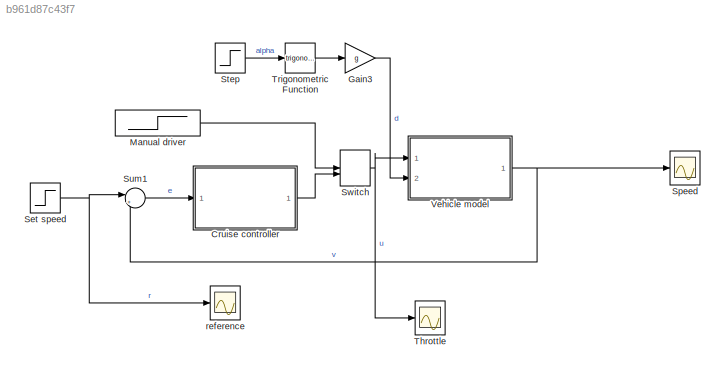
MODEL slx_b961d87c43f7
KIND model
CONFIG AbsTol = auto
CONFIG EnableMultiTasking = off
CONFIG FixedStep = auto
CONFIG MaxStep = 1e-3
CONFIG MinStep = auto
CONFIG RelTol = 1e-3
CONFIG SampleTimeConstraint = Unconstrained
CONFIG SolverName = ode45
CONFIG StartTime = 0.0
CONFIG StopTime = 100
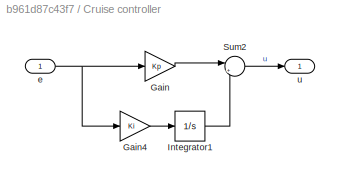
BLOCK [SubSystem] Cruise controller
  Ports = [1, 1]
  RequestExecContextInheritance = off
BLOCK [Gain] Cruise controller/Gain
  Gain = Kp
BLOCK [Gain] Cruise controller/Gain4
  Gain = Ki
BLOCK [Integrator] Cruise controller/Integrator1
  InitialCondition = a*25/b
  Ports = [1, 1]
BLOCK [Sum] Cruise controller/Sum2
  Inputs = |++
  Ports = [2, 1]
BLOCK [Inport] Cruise controller/e
BLOCK [Outport] Cruise controller/u
BLOCK [Gain] Gain3
  Gain = g
BLOCK [Step] Manual driver
  After = 30*a/b
  Before = 25*a/b
  SampleTime = 0
BLOCK [Step] Set speed
  After = 30
  Before = 25
  SampleTime = 0
BLOCK [Scope] Speed
  Floating = off
  NumInputPorts = 1
  Ports = [1]
  ScopeSpecificationString = Simulink.scopes.TimeScopeBlockCfg('CurrentConfiguration', extmgr.ConfigurationSet(extmgr.Configuration('Core','General UI',true),extmgr.Configuration('Core','Source UI',true),extmgr.Configuration('Sources','WiredSimulink',true,'DataLogging',true,'DataLoggingSaveFormat','StructureWithTime','DataLoggingDecimation','10','DataLoggingDecimateData',true,'DataLoggingVariableName','speed'),extmgr.Configur...<+1697ch>
BLOCK [Step] Step
  After = 0.1
  SampleTime = 0
  Time = 1000
BLOCK [Sum] Sum1
  Inputs = |+-
  Ports = [2, 1]
BLOCK [ManualSwitch] Switch
BLOCK [Scope] Throttle
  Floating = off
  NumInputPorts = 1
  Ports = [1]
  ScopeSpecificationString = Simulink.scopes.TimeScopeBlockCfg('CurrentConfiguration', extmgr.ConfigurationSet(extmgr.Configuration('Core','General UI',true),extmgr.Configuration('Core','Source UI',true),extmgr.Configuration('Sources','WiredSimulink',true,'DataLoggingVariableName','ScopeData1','DataLoggingSaveFormat','Array','DataLoggingDecimation','1','DataLoggingDecimateData',true),extmgr.Configuration('Visuals','Time Domai...<+1649ch>
BLOCK [Trigonometry] Trigonometric Function
  Ports = [1, 1]
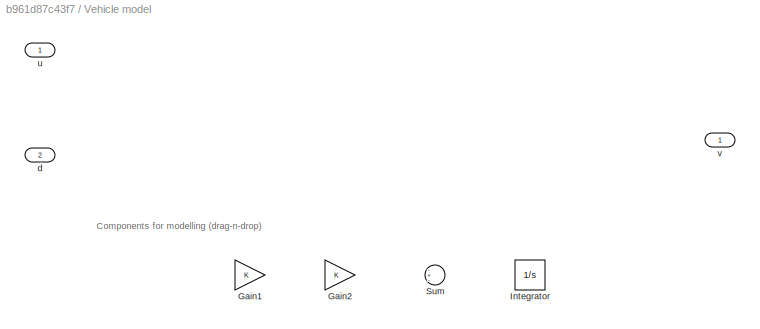
BLOCK [SubSystem] Vehicle model
  Ports = [2, 1]
  RequestExecContextInheritance = off
BLOCK [Gain] Vehicle model/Gain1
BLOCK [Gain] Vehicle model/Gain2
BLOCK [Integrator] Vehicle model/Integrator
  InitialCondition = 25
  Ports = [1, 1]
BLOCK [Sum] Vehicle model/Sum
  Inputs = -+-
  Ports = [3, 1]
BLOCK [Inport] Vehicle model/d
  Port = 2
BLOCK [Inport] Vehicle model/u
BLOCK [Outport] Vehicle model/v
BLOCK [Scope] reference
  Floating = off
  NumInputPorts = 1
  Ports = [1]
  ScopeSpecificationString = Simulink.scopes.TimeScopeBlockCfg('CurrentConfiguration', extmgr.ConfigurationSet(extmgr.Configuration('Core','General UI',true),extmgr.Configuration('Core','Source UI',true),extmgr.Configuration('Sources','WiredSimulink',true,'DataLoggingSaveFormat','Array','DataLoggingDecimation','1','DataLoggingDecimateData',true),extmgr.Configuration('Visuals','Time Domain',true,'SerializedDisplays',{struct('M...<+1604ch>
ANNOTATION Vehicle model: Components for modelling (drag-n-drop)
LINE Cruise controller/Gain4:1 -> Cruise controller/Integrator1:1
LINE Cruise controller/Gain:1 -> Cruise controller/Sum2:1
LINE Cruise controller/Integrator1:1 -> Cruise controller/Sum2:2
LINE Cruise controller/Sum2:1 -> Cruise controller/u:1
NET Cruise controller/e:1 -> Cruise controller/Gain4:1, Cruise controller/Gain:1
LINE Cruise controller:1 -> Switch:2
LINE Gain3:1 -> Vehicle model:2
LINE Manual driver:1 -> Switch:1
NET Set speed:1 -> Sum1:1, reference:1
LINE Step:1 -> Trigonometric Function:1
LINE Sum1:1 -> Cruise controller:1
NET Switch:1 -> Throttle:1, Vehicle model:1
LINE Trigonometric Function:1 -> Gain3:1
NET Vehicle model:1 -> Speed:1, Sum1:2
note: NET lines group one-source signal fan-out (src -> all destinations, sorted); 1:1 wires keep LINE
